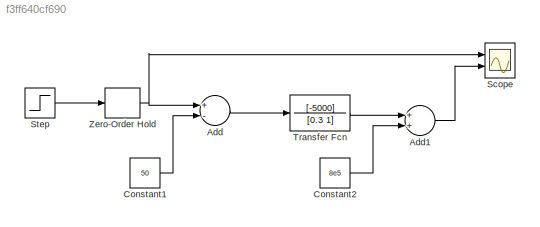
MODEL slx_f3ff640cf690
KIND model
BLOCK [Sum] Add
  InputSameDT = off
  Inputs = +-
  OutDataTypeStr = Inherit: Inherit via internal rule
  Ports = [2, 1]
  SaturateOnIntegerOverflow = off
BLOCK [Sum] Add1
  InputSameDT = off
  OutDataTypeStr = Inherit: Inherit via internal rule
  Ports = [2, 1]
  SaturateOnIntegerOverflow = off
BLOCK [Constant] Constant1
  Value = 50
BLOCK [Constant] Constant2
  Value = 8e5
BLOCK [Scope] Scope
  DataFormat = StructureWithTime
  Floating = off
  NumInputPorts = 2
  Ports = [2]
  SampleTime = 0
  ShowLegends = off
  YMax = 5~5
  YMin = -5~-5
BLOCK [Step] Step
  After = 60
  Before = 50
  SampleTime = 0
BLOCK [TransferFcn] Transfer Fcn
  Denominator = [0.3 1]
  Numerator = [-5000]
BLOCK [ZeroOrderHold] Zero-Order Hold
  SampleTime = 0.5
LINE Add1:1 -> Scope:2
LINE Add:1 -> Transfer Fcn:1
LINE Constant1:1 -> Add:2
LINE Constant2:1 -> Add1:2
LINE Step:1 -> Zero-Order Hold:1
LINE Transfer Fcn:1 -> Add1:1
NET Zero-Order Hold:1 -> Add:1, Scope:1
note: NET lines group one-source signal fan-out (src -> all destinations, sorted); 1:1 wires keep LINE
